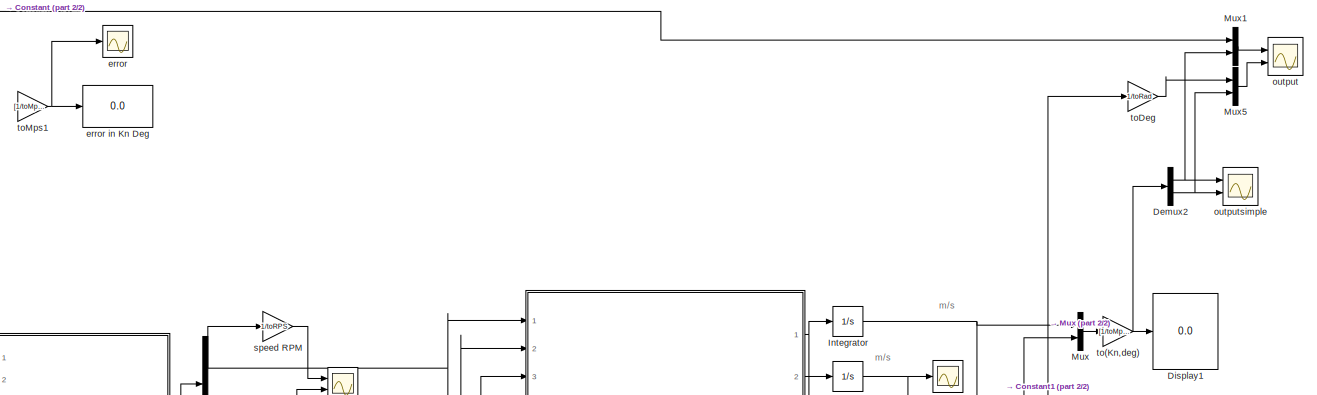
[diagram: root canvas - part 1/2, full width, top band]
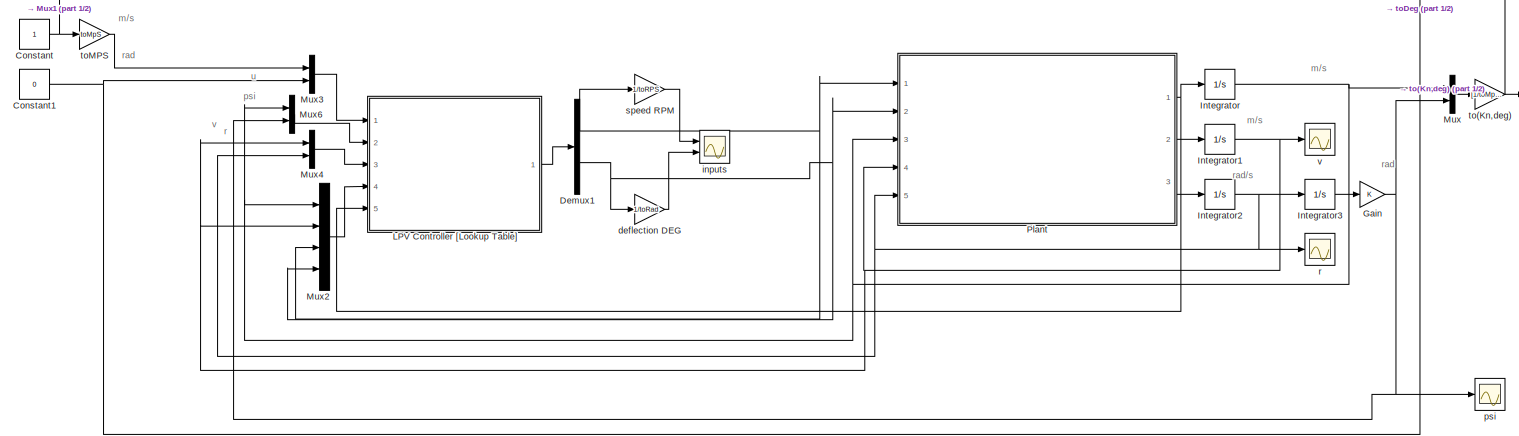
[diagram: root canvas - part 2/2, full width, bottom band]
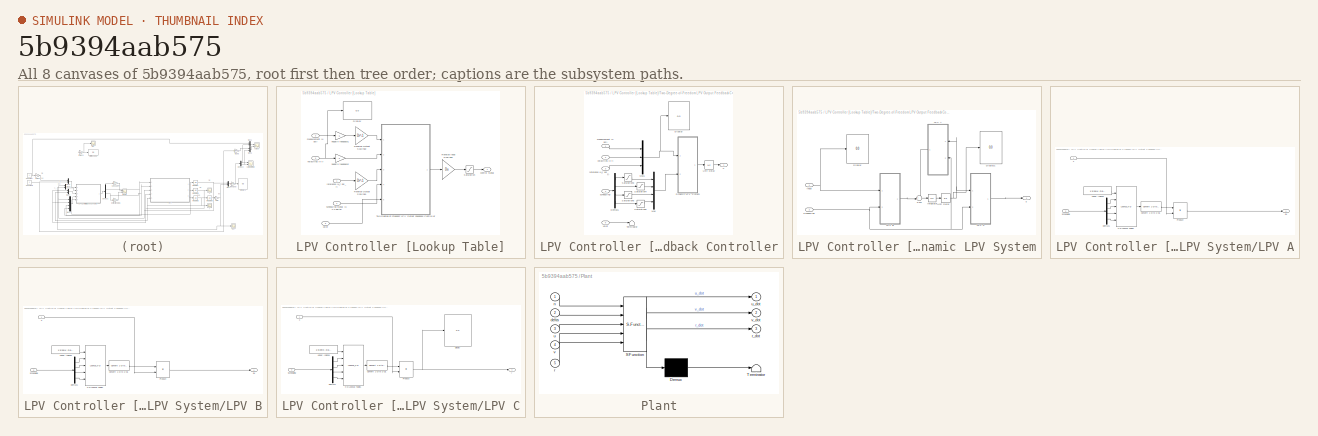
[diagram: thumbnail index - all 8 canvases of the model, root first then tree order]
MODEL slx_5b9394aab575
KIND model
CONFIG AbsTol = auto
CONFIG EnableMultiTasking = on
CONFIG FixedStep = 1e-3
CONFIG MaxStep = auto
CONFIG MinStep = auto
CONFIG RelTol = 1e-3
CONFIG SampleTimeConstraint = Unconstrained
CONFIG Solver = VariableStepAuto
CONFIG SolverName = VariableStepAuto
CONFIG StartTime = 0.0
CONFIG StopTime = 2000
BLOCK [Constant] Constant
BLOCK [Constant] Constant1
  Value = 0
BLOCK [Demux] Demux1
  DisplayOption = bar
  Outputs = 2
  Ports = [1, 2]
BLOCK [Demux] Demux2
  DisplayOption = bar
  Outputs = 2
  Ports = [1, 2]
BLOCK [Display] Display1
  Decimation = 1
  Ports = [1]
BLOCK [Gain] Gain
  OutDataTypeStr = Inherit: Inherit via internal rule
  ParamDataTypeStr = Inherit: Inherit via internal rule
  SaturateOnIntegerOverflow = off
BLOCK [Integrator] Integrator
  InitialCondition = .51*toMpS
  LowerSaturationLimit = 1e-1*toMpS
  Ports = [1, 1]
  UpperSaturationLimit = 16*toMpS
BLOCK [Integrator] Integrator1
  LimitOutput = on
  LowerSaturationLimit = -1*toMpS
  Ports = [1, 1]
  UpperSaturationLimit = 1*toMpS
BLOCK [Integrator] Integrator2
  LimitOutput = on
  LowerSaturationLimit = -1
  Ports = [1, 1]
  UpperSaturationLimit = 1
BLOCK [Integrator] Integrator3
  IgnoreLimit = on
  InitialCondition = 0*toRad
  LowerSaturationLimit = -180*toRad
  Ports = [1, 1]
  UpperSaturationLimit = 180*toRad
  WrapState = on
  WrappedStateLowerValue = -180*toRad
  WrappedStateUpperValue = 180*toRad
BLOCK [SubSystem] LPV Controller [Lookup Table]
  Ports = [5, 1]
  RequestExecContextInheritance = off
  Variant = off
BLOCK [Display] LPV Controller [Lookup Table]/Display
  Decimation = 1
  Ports = [1]
BLOCK [Gain] LPV Controller [Lookup Table]/Reverse Input Scaling1
  Gain = Du
  Multiplication = Matrix(K*u)
  OutDataTypeStr = Inherit: Inherit via internal rule
  ParamDataTypeStr = Inherit: Inherit via internal rule
  SaturateOnIntegerOverflow = off
BLOCK [Gain] LPV Controller [Lookup Table]/Reverse Output Scaling1
  Gain = Dr^-1
  Multiplication = Matrix(K*u)
  OutDataTypeStr = Inherit: Inherit via internal rule
  ParamDataTypeStr = Inherit: Inherit via internal rule
  SaturateOnIntegerOverflow = off
BLOCK [Gain] LPV Controller [Lookup Table]/Reverse Output Scaling2
  Gain = Dr^-1
  Multiplication = Matrix(K*u)
  OutDataTypeStr = Inherit: Inherit via internal rule
  ParamDataTypeStr = Inherit: Inherit via internal rule
  SaturateOnIntegerOverflow = off
BLOCK [Saturate] LPV Controller [Lookup Table]/Saturation
  InputPortMap = u0
  LowerLimit = [-20.*toRPS -3.*toRad]
  Ports = [1, 1]
  UpperLimit = [20.*toRPS 3.*toRad]
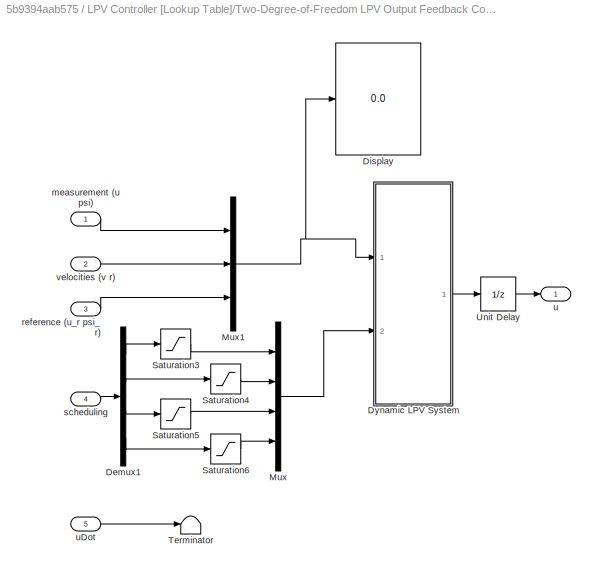
BLOCK [SubSystem] LPV Controller [Lookup Table]/Two-Degree-of-Freedom LPV Output Feedback Controller
  Ports = [5, 1]
  RequestExecContextInheritance = off
  Variant = off
BLOCK [Demux] LPV Controller [Lookup Table]/Two-Degree-of-Freedom LPV Output Feedback Controller/Demux1
  DisplayOption = bar
  Ports = [1, 4]
BLOCK [Display] LPV Controller [Lookup Table]/Two-Degree-of-Freedom LPV Output Feedback Controller/Display
  Decimation = 1
  Ports = [1]
BLOCK [SubSystem] LPV Controller [Lookup Table]/Two-Degree-of-Freedom LPV Output Feedback Controller/Dynamic LPV System
  Ports = [2, 1]
  RequestExecContextInheritance = off
  Variant = off
BLOCK [Display] LPV Controller [Lookup Table]/Two-Degree-of-Freedom LPV Output Feedback Controller/Dynamic LPV System/Display
  Decimation = 1
  Ports = [1]
BLOCK [Display] LPV Controller [Lookup Table]/Two-Degree-of-Freedom LPV Output Feedback Controller/Dynamic LPV System/Display1
  Decimation = 1
  Ports = [1]
BLOCK [Integrator] LPV Controller [Lookup Table]/Two-Degree-of-Freedom LPV Output Feedback Controller/Dynamic LPV System/Integrator
  InitialCondition = zeros(size(K.a,1),1)
  Ports = [1, 1]
BLOCK [SubSystem] LPV Controller [Lookup Table]/Two-Degree-of-Freedom LPV Output Feedback Controller/Dynamic LPV System/LPV A
  Ports = [2, 1]
  RequestExecContextInheritance = off
  Variant = off
BLOCK [Reference] LPV Controller [Lookup Table]/Two-Degree-of-Freedom LPV Output Feedback Controller/Dynamic LPV System/LPV A/Convert 1-D to 2-D1  REF=dspsigattribs/Convert 1-D to 2-D
  Ports = [1, 1]
  SourceBlock = dspsigattribs/Convert 1-D to 2-D
  SourceProductBaseCode = DS
  SourceProductName = DSP System Toolbox
  SourceType = Convert 1-D to 2-D
BLOCK [Demux] LPV Controller [Lookup Table]/Two-Degree-of-Freedom LPV Output Feedback Controller/Dynamic LPV System/LPV A/Demux1
  DisplayOption = bar
  Ports = [1, 4]
BLOCK [Constant] LPV Controller [Lookup Table]/Two-Degree-of-Freedom LPV Output Feedback Controller/Dynamic LPV System/LPV A/Linear Indices
  Value = 1:size(K.Data.a,1)*size(K.Data.a,2)
BLOCK [Product] LPV Controller [Lookup Table]/Two-Degree-of-Freedom LPV Output Feedback Controller/Dynamic LPV System/LPV A/Product
  InputSameDT = off
  Multiplication = Matrix(*)
  OutDataTypeStr = Inherit: Inherit via internal rule
  Ports = [2, 1]
  RndMeth = Floor
  SaturateOnIntegerOverflow = off
BLOCK [Inport] LPV Controller [Lookup Table]/Two-Degree-of-Freedom LPV Output Feedback Controller/Dynamic LPV System/LPV A/Scheduling
  IconDisplay = Port number
  Port = 2
BLOCK [Outport] LPV Controller [Lookup Table]/Two-Degree-of-Freedom LPV Output Feedback Controller/Dynamic LPV System/LPV A/dx
  IconDisplay = Port number
BLOCK [Lookup_n-D] LPV Controller [Lookup Table]/Two-Degree-of-Freedom LPV Output Feedback Controller/Dynamic LPV System/LPV A/n-D Lookup Table1
  BreakpointsForDimension1 = 1:size(K.Data.a,1)*size(K.Data.a,2)
  BreakpointsForDimension2 = K.Parameter.u.GridData
  BreakpointsForDimension3 = K.Parameter.v.GridData
  BreakpointsForDimension4 = K.Parameter.n.GridData
  BreakpointsForDimension5 = K.Parameter.delta.GridData
  BreakpointsForDimension6 = K.Parameter.uDot.GridData
  ExtrapMethod = Clip
  InternalRulePriority = Speed
  NumberOfTableDimensions = 5
  Ports = [5, 1]
  RndMeth = Simplest
  Table = reshape(K.Data.a,[size(K.Data.a,1)*size(K.Data.a,2), K.Domain.LIVData'])
  UseLastTableValue = on
BLOCK [Inport] LPV Controller [Lookup Table]/Two-Degree-of-Freedom LPV Output Feedback Controller/Dynamic LPV System/LPV A/x
  IconDisplay = Port number
BLOCK [SubSystem] LPV Controller [Lookup Table]/Two-Degree-of-Freedom LPV Output Feedback Controller/Dynamic LPV System/LPV B
  Ports = [2, 1]
  RequestExecContextInheritance = off
  Variant = off
BLOCK [Reference] LPV Controller [Lookup Table]/Two-Degree-of-Freedom LPV Output Feedback Controller/Dynamic LPV System/LPV B/Convert 1-D to 2-D1  REF=dspsigattribs/Convert 1-D to 2-D
  Ports = [1, 1]
  SourceBlock = dspsigattribs/Convert 1-D to 2-D
  SourceProductBaseCode = DS
  SourceProductName = DSP System Toolbox
  SourceType = Convert 1-D to 2-D
BLOCK [Demux] LPV Controller [Lookup Table]/Two-Degree-of-Freedom LPV Output Feedback Controller/Dynamic LPV System/LPV B/Demux1
  DisplayOption = bar
  Ports = [1, 4]
BLOCK [Constant] LPV Controller [Lookup Table]/Two-Degree-of-Freedom LPV Output Feedback Controller/Dynamic LPV System/LPV B/Linear Indices
  Value = 1:size(K.Data.b,1)*size(K.Data.b,2)
BLOCK [Product] LPV Controller [Lookup Table]/Two-Degree-of-Freedom LPV Output Feedback Controller/Dynamic LPV System/LPV B/Product
  InputSameDT = off
  Multiplication = Matrix(*)
  OutDataTypeStr = Inherit: Inherit via internal rule
  Ports = [2, 1]
  RndMeth = Floor
  SaturateOnIntegerOverflow = off
BLOCK [Inport] LPV Controller [Lookup Table]/Two-Degree-of-Freedom LPV Output Feedback Controller/Dynamic LPV System/LPV B/Scheduling
  IconDisplay = Port number
  Port = 2
BLOCK [Outport] LPV Controller [Lookup Table]/Two-Degree-of-Freedom LPV Output Feedback Controller/Dynamic LPV System/LPV B/dx
  IconDisplay = Port number
BLOCK [Lookup_n-D] LPV Controller [Lookup Table]/Two-Degree-of-Freedom LPV Output Feedback Controller/Dynamic LPV System/LPV B/n-D Lookup Table1
  BreakpointsForDimension1 = 1:size(K.Data.b,1)*size(K.Data.b,2)
  BreakpointsForDimension2 = K.Parameter.u.GridData
  BreakpointsForDimension3 = K.Parameter.v.GridData
  BreakpointsForDimension4 = K.Parameter.n.GridData
  BreakpointsForDimension5 = K.Parameter.delta.GridData
  BreakpointsForDimension6 = K.Parameter.uDot.GridData
  ExtrapMethod = Clip
  InternalRulePriority = Speed
  NumberOfTableDimensions = 5
  Ports = [5, 1]
  RndMeth = Simplest
  Table = reshape(K.Data.b,[size(K.Data.b,1)*size(K.Data.b,2), K.Domain.LIVData'])
  UseLastTableValue = on
BLOCK [Inport] LPV Controller [Lookup Table]/Two-Degree-of-Freedom LPV Output Feedback Controller/Dynamic LPV System/LPV B/u
  IconDisplay = Port number
BLOCK [SubSystem] LPV Controller [Lookup Table]/Two-Degree-of-Freedom LPV Output Feedback Controller/Dynamic LPV System/LPV C
  Ports = [2, 1]
  RequestExecContextInheritance = off
  Variant = off
BLOCK [Reference] LPV Controller [Lookup Table]/Two-Degree-of-Freedom LPV Output Feedback Controller/Dynamic LPV System/LPV C/Convert 1-D to 2-D1  REF=dspsigattribs/Convert 1-D to 2-D
  Ports = [1, 1]
  SourceBlock = dspsigattribs/Convert 1-D to 2-D
  SourceProductBaseCode = DS
  SourceProductName = DSP System Toolbox
  SourceType = Convert 1-D to 2-D
BLOCK [Demux] LPV Controller [Lookup Table]/Two-Degree-of-Freedom LPV Output Feedback Controller/Dynamic LPV System/LPV C/Demux1
  DisplayOption = bar
  Ports = [1, 4]
BLOCK [Display] LPV Controller [Lookup Table]/Two-Degree-of-Freedom LPV Output Feedback Controller/Dynamic LPV System/LPV C/Display
  Decimation = 1
  Ports = [1]
BLOCK [Constant] LPV Controller [Lookup Table]/Two-Degree-of-Freedom LPV Output Feedback Controller/Dynamic LPV System/LPV C/Linear Indices
  Value = 1:size(K.Data.c,1)*size(K.Data.c,2)
BLOCK [Product] LPV Controller [Lookup Table]/Two-Degree-of-Freedom LPV Output Feedback Controller/Dynamic LPV System/LPV C/Product
  InputSameDT = off
  Multiplication = Matrix(*)
  OutDataTypeStr = Inherit: Inherit via internal rule
  Ports = [2, 1]
  RndMeth = Floor
  SaturateOnIntegerOverflow = off
BLOCK [Inport] LPV Controller [Lookup Table]/Two-Degree-of-Freedom LPV Output Feedback Controller/Dynamic LPV System/LPV C/Scheduling
  IconDisplay = Port number
  Port = 2
BLOCK [Lookup_n-D] LPV Controller [Lookup Table]/Two-Degree-of-Freedom LPV Output Feedback Controller/Dynamic LPV System/LPV C/n-D Lookup Table1
  BreakpointsForDimension1 = 1:size(K.Data.c,1)*size(K.Data.c,2)
  BreakpointsForDimension2 = K.Parameter.u.GridData
  BreakpointsForDimension3 = K.Parameter.v.GridData
  BreakpointsForDimension4 = K.Parameter.n.GridData
  BreakpointsForDimension5 = K.Parameter.delta.GridData
  BreakpointsForDimension6 = K.Parameter.uDot.GridData
  ExtrapMethod = Clip
  InternalRulePriority = Speed
  NumberOfTableDimensions = 5
  Ports = [5, 1]
  RndMeth = Simplest
  Table = reshape(K.Data.c,[size(K.Data.c,1)*size(K.Data.c,2), K.Domain.LIVData'])
  UseLastTableValue = on
BLOCK [Inport] LPV Controller [Lookup Table]/Two-Degree-of-Freedom LPV Output Feedback Controller/Dynamic LPV System/LPV C/x
  IconDisplay = Port number
BLOCK [Outport] LPV Controller [Lookup Table]/Two-Degree-of-Freedom LPV Output Feedback Controller/Dynamic LPV System/LPV C/y
  IconDisplay = Port number
BLOCK [Inport] LPV Controller [Lookup Table]/Two-Degree-of-Freedom LPV Output Feedback Controller/Dynamic LPV System/Scheduling
  IconDisplay = Port number
  Port = 2
BLOCK [Sum] LPV Controller [Lookup Table]/Two-Degree-of-Freedom LPV Output Feedback Controller/Dynamic LPV System/Sum
  IconShape = round
  InputSameDT = off
  Inputs = ++|
  OutDataTypeStr = Inherit: Inherit via internal rule
  Ports = [2, 1]
  SaturateOnIntegerOverflow = off
BLOCK [UnitDelay] LPV Controller [Lookup Table]/Two-Degree-of-Freedom LPV Output Feedback Controller/Dynamic LPV System/Unit Delay
  InputProcessing = Elements as channels (sample based)
  SampleTime = -1
BLOCK [Inport] LPV Controller [Lookup Table]/Two-Degree-of-Freedom LPV Output Feedback Controller/Dynamic LPV System/input
  IconDisplay = Port number
BLOCK [Outport] LPV Controller [Lookup Table]/Two-Degree-of-Freedom LPV Output Feedback Controller/Dynamic LPV System/u
  IconDisplay = Port number
BLOCK [Mux] LPV Controller [Lookup Table]/Two-Degree-of-Freedom LPV Output Feedback Controller/Mux
  DisplayOption = bar
  Ports = [4, 1]
BLOCK [Mux] LPV Controller [Lookup Table]/Two-Degree-of-Freedom LPV Output Feedback Controller/Mux1
  DisplayOption = bar
  Inputs = [2 2 2]
  Ports = [3, 1]
BLOCK [Saturate] LPV Controller [Lookup Table]/Two-Degree-of-Freedom LPV Output Feedback Controller/Saturation3
  InputPortMap = u0
  LowerLimit = K.Parameter.u.Range(1)
  Ports = [1, 1]
  UpperLimit = K.Parameter.u.Range(2)
BLOCK [Saturate] LPV Controller [Lookup Table]/Two-Degree-of-Freedom LPV Output Feedback Controller/Saturation4
  InputPortMap = u0
  LowerLimit = K.Parameter.v.Range(1)
  Ports = [1, 1]
  UpperLimit = K.Parameter.v.Range(2)
BLOCK [Saturate] LPV Controller [Lookup Table]/Two-Degree-of-Freedom LPV Output Feedback Controller/Saturation5
  InputPortMap = u0
  LowerLimit = K.Parameter.n.Range(1)
  Ports = [1, 1]
  UpperLimit = K.Parameter.n.Range(2)
BLOCK [Saturate] LPV Controller [Lookup Table]/Two-Degree-of-Freedom LPV Output Feedback Controller/Saturation6
  InputPortMap = u0
  LowerLimit = K.Parameter.delta.Range(1)
  Ports = [1, 1]
  UpperLimit = K.Parameter.delta.Range(2)
BLOCK [Terminator] LPV Controller [Lookup Table]/Two-Degree-of-Freedom LPV Output Feedback Controller/Terminator
BLOCK [UnitDelay] LPV Controller [Lookup Table]/Two-Degree-of-Freedom LPV Output Feedback Controller/Unit Delay
  InitialCondition = [1 0]
  InputProcessing = Elements as channels (sample based)
  SampleTime = -1
BLOCK [Inport] LPV Controller [Lookup Table]/Two-Degree-of-Freedom LPV Output Feedback Controller/measurement (u psi)
  IconDisplay = Port number
BLOCK [Inport] LPV Controller [Lookup Table]/Two-Degree-of-Freedom LPV Output Feedback Controller/reference (u_r psi_r)
  IconDisplay = Port number
  Port = 3
BLOCK [Inport] LPV Controller [Lookup Table]/Two-Degree-of-Freedom LPV Output Feedback Controller/scheduling
  IconDisplay = Port number
  Port = 4
BLOCK [Outport] LPV Controller [Lookup Table]/Two-Degree-of-Freedom LPV Output Feedback Controller/u
  IconDisplay = Port number
BLOCK [Inport] LPV Controller [Lookup Table]/Two-Degree-of-Freedom LPV Output Feedback Controller/uDot
  IconDisplay = Port number
  Port = 5
BLOCK [Inport] LPV Controller [Lookup Table]/Two-Degree-of-Freedom LPV Output Feedback Controller/velocities (v r)
  IconDisplay = Port number
  Port = 2
BLOCK [Outport] LPV Controller [Lookup Table]/control signal
  IconDisplay = Port number
BLOCK [Inport] LPV Controller [Lookup Table]/measurement (u psi)
  IconDisplay = Port number
  Port = 2
BLOCK [Gain] LPV Controller [Lookup Table]/negativ feedback1
  Gain = -1
  OutDataTypeStr = Inherit: Inherit via internal rule
  ParamDataTypeStr = Inherit: Inherit via internal rule
  SaturateOnIntegerOverflow = off
BLOCK [Gain] LPV Controller [Lookup Table]/negativ feedback2
  Gain = -1
  OutDataTypeStr = Inherit: Inherit via internal rule
  ParamDataTypeStr = Inherit: Inherit via internal rule
  SaturateOnIntegerOverflow = off
BLOCK [Inport] LPV Controller [Lookup Table]/reference (u_r psi_r)
  IconDisplay = Port number
BLOCK [Inport] LPV Controller [Lookup Table]/scheduling signal (u v n delta)
  IconDisplay = Port number
  Port = 4
BLOCK [Inport] LPV Controller [Lookup Table]/uDot
  IconDisplay = Port number
  Port = 5
BLOCK [Inport] LPV Controller [Lookup Table]/velocities (v r)
  IconDisplay = Port number
  Port = 3
BLOCK [Mux] Mux
  DisplayOption = bar
  Inputs = 2
  Ports = [2, 1]
BLOCK [Mux] Mux1
  DisplayOption = bar
  Inputs = 2
  Ports = [2, 1]
BLOCK [Mux] Mux2
  DisplayOption = bar
  Ports = [4, 1]
BLOCK [Mux] Mux3
  DisplayOption = bar
  Inputs = 2
  Ports = [2, 1]
BLOCK [Mux] Mux4
  DisplayOption = bar
  Inputs = 2
  Ports = [2, 1]
BLOCK [Mux] Mux5
  DisplayOption = bar
  Inputs = 2
  Ports = [2, 1]
BLOCK [Mux] Mux6
  DisplayOption = bar
  Inputs = 2
  Ports = [2, 1]
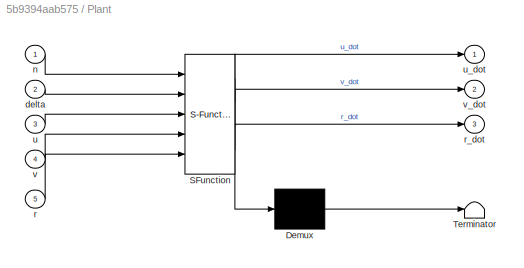
BLOCK [SubSystem] Plant
  ErrorFcn = Stateflow.Translate.translate
  PermitHierarchicalResolution = ExplicitOnly
  Ports = [5, 3]
  RequestExecContextInheritance = off
  SFBlockType = MATLAB Function
  TreatAsAtomicUnit = on
  Variant = off
BLOCK [Demux] Plant/ Demux 
  Outputs = 1
  Ports = [1, 1]
BLOCK [S-Function] Plant/ SFunction 
  EnableBusSupport = on
  FunctionName = sf_sfun
  PortCounts = [5 4]
  Ports = [5, 4]
  SFcnIsStateOwnerBlock = off
  SFunctionDeploymentMode = off
  Tag = Stateflow S-Function SimQLPVOFb 2
BLOCK [Terminator] Plant/ Terminator 
BLOCK [Inport] Plant/delta
  IconDisplay = Port number
  Port = 2
BLOCK [Inport] Plant/n
  IconDisplay = Port number
BLOCK [Inport] Plant/r
  IconDisplay = Port number
  Port = 5
BLOCK [Outport] Plant/r_dot
  IconDisplay = Port number
  Port = 3
BLOCK [Inport] Plant/u
  IconDisplay = Port number
  Port = 3
BLOCK [Outport] Plant/u_dot
  IconDisplay = Port number
BLOCK [Inport] Plant/v
  IconDisplay = Port number
  Port = 4
BLOCK [Outport] Plant/v_dot
  IconDisplay = Port number
  Port = 2
BLOCK [Gain] deflection DEG
  Gain = 1/toRad
  OutDataTypeStr = Inherit: Inherit via internal rule
  ParamDataTypeStr = Inherit: Inherit via internal rule
  SaturateOnIntegerOverflow = off
BLOCK [Scope] error
  NumInputPorts = 1
  Ports = [1]
  ScopeSpecificationString = Simulink.scopes.TimeScopeBlockCfg('CurrentConfiguration', extmgr.ConfigurationSet(extmgr.Configuration('Core','General UI',true),extmgr.Configuration('Core','Source UI',true),extmgr.Configuration('Sources','WiredSimulink',true,'DataLoggingVariableName','ScopeData2'),extmgr.Configuration('Visuals','Time Domain',true,'SerializedDisplays',{struct('MinYLimReal','-135.00000','MaxYLimReal','315.00000','...<+1517ch>
BLOCK [Display] error in Kn Deg
  Decimation = 1
  Ports = [1]
BLOCK [Scope] inputs
  NumInputPorts = 2
  Ports = [2]
  ScopeSpecificationString = Simulink.scopes.TimeScopeBlockCfg('CurrentConfiguration', extmgr.ConfigurationSet(extmgr.Configuration('Core','General UI',true),extmgr.Configuration('Core','Source UI',true),extmgr.Configuration('Sources','WiredSimulink',true,'DataLoggingVariableName','ScopeData1'),extmgr.Configuration('Visuals','Time Domain',true,'SerializedDisplays',{struct('MinYLimReal','-100.00000','MaxYLimReal','100.00000','...<+2065ch>
BLOCK [Scope] output
  NumInputPorts = 2
  Ports = [2]
  ScopeSpecificationString = Simulink.scopes.TimeScopeBlockCfg('CurrentConfiguration', extmgr.ConfigurationSet(extmgr.Configuration('Core','General UI',true,'FigureColor',[1 1 1]),extmgr.Configuration('Core','Source UI',true),extmgr.Configuration('Sources','WiredSimulink',true,'DataLoggingVariableName','ScopeData1'),extmgr.Configuration('Visuals','Time Domain',true,'PlotType','Line','SerializedDisplays',{struct('MinYLimReal',...<+3953ch>
BLOCK [Scope] outputsimple
  NumInputPorts = 2
  Ports = [2]
  ScopeSpecificationString = Simulink.scopes.TimeScopeBlockCfg('CurrentConfiguration', extmgr.ConfigurationSet(extmgr.Configuration('Core','General UI',true,'FigureColor',[1 1 1]),extmgr.Configuration('Core','Source UI',true),extmgr.Configuration('Sources','WiredSimulink',true,'DataLoggingVariableName','ScopeData1'),extmgr.Configuration('Visuals','Time Domain',true,'PlotType','Line','SerializedDisplays',{struct('MinYLimReal',...<+4044ch>
BLOCK [Scope] psi
  NumInputPorts = 1
  Ports = [1]
  ScopeSpecificationString = Simulink.scopes.TimeScopeBlockCfg('CurrentConfiguration', extmgr.ConfigurationSet(extmgr.Configuration('Core','General UI',true),extmgr.Configuration('Core','Source UI',true),extmgr.Configuration('Sources','WiredSimulink',true,'DataLoggingVariableName','ScopeData2'),extmgr.Configuration('Visuals','Time Domain',true,'SerializedDisplays',{struct('MinYLimReal','-3.91447','MaxYLimReal','3.92489','YLab...<+1432ch>
BLOCK [Scope] r
  NumInputPorts = 1
  Ports = [1]
  ScopeSpecificationString = Simulink.scopes.TimeScopeBlockCfg('CurrentConfiguration', extmgr.ConfigurationSet(extmgr.Configuration('Core','General UI',true),extmgr.Configuration('Core','Source UI',true),extmgr.Configuration('Sources','WiredSimulink',true,'DataLoggingVariableName','ScopeData2'),extmgr.Configuration('Visuals','Time Domain',true,'SerializedDisplays',{struct('MinYLimReal','-0.00061','MaxYLimReal','0.00014','YLab...<+1424ch>
BLOCK [Gain] speed RPM
  Gain = 1/toRPS
  OutDataTypeStr = Inherit: Inherit via internal rule
  ParamDataTypeStr = Inherit: Inherit via internal rule
  SaturateOnIntegerOverflow = off
BLOCK [Gain] to(Kn,deg)
  Gain = [1/toMpS 1/toRad]
  OutDataTypeStr = Inherit: Inherit via internal rule
  ParamDataTypeStr = Inherit: Inherit via internal rule
  SaturateOnIntegerOverflow = off
BLOCK [Gain] toDeg
  Gain = 1/toRad
  OutDataTypeStr = Inherit: Inherit via internal rule
  ParamDataTypeStr = Inherit: Inherit via internal rule
  SaturateOnIntegerOverflow = off
BLOCK [Gain] toMPS
  Gain = toMpS
  OutDataTypeStr = Inherit: Inherit via internal rule
  ParamDataTypeStr = Inherit: Inherit via internal rule
  SaturateOnIntegerOverflow = off
BLOCK [Gain] toMps1
  Gain = [1/toMpS 180/pi]
  OutDataTypeStr = Inherit: Inherit via internal rule
  ParamDataTypeStr = Inherit: Inherit via internal rule
  SaturateOnIntegerOverflow = off
BLOCK [Scope] v
  NumInputPorts = 1
  Ports = [1]
  ScopeSpecificationString = Simulink.scopes.TimeScopeBlockCfg('CurrentConfiguration', extmgr.ConfigurationSet(extmgr.Configuration('Core','General UI',true),extmgr.Configuration('Core','Source UI',true),extmgr.Configuration('Sources','WiredSimulink',true,'DataLoggingVariableName','ScopeData1'),extmgr.Configuration('Visuals','Time Domain',true,'SerializedDisplays',{struct('MinYLimReal','-0.00839','MaxYLimReal','0.0537','YLabe...<+1446ch>
ANNOTATION (root): m/s
ANNOTATION (root): psi
ANNOTATION (root): r
ANNOTATION (root): rad
ANNOTATION (root): rad/s
ANNOTATION (root): u
ANNOTATION (root): v
NET Constant1:1 -> Mux3:2, toDeg:1
NET Constant:1 -> Mux1:1, toMPS:1
NET Demux1:1 -> Mux2:3, Plant:1, speed RPM:1
NET Demux1:2 -> Mux2:4, Plant:2, deflection DEG:1
NET Demux2:1 -> Mux1:2, outputsimple:1
NET Demux2:2 -> Mux5:2, outputsimple:2
NET Gain:1 -> Mux6:2, Mux:2, psi:1
NET Integrator1:1 -> Mux2:2, Mux4:1, Plant:4, v:1
NET Integrator2:1 -> Integrator3:1, Mux4:2, Plant:5, r:1
LINE Integrator3:1 -> Gain:1
NET Integrator:1 -> Mux2:1, Mux6:1, Mux:1, Plant:3
LINE LPV Controller [Lookup Table]/Reverse Input Scaling1:1 -> LPV Controller [Lookup Table]/Saturation:1
LINE LPV Controller [Lookup Table]/Reverse Output Scaling1:1 -> LPV Controller [Lookup Table]/Two-Degree-of-Freedom LPV Output Feedback Controller:3
LINE LPV Controller [Lookup Table]/Reverse Output Scaling2:1 -> LPV Controller [Lookup Table]/Two-Degree-of-Freedom LPV Output Feedback Controller:1
LINE LPV Controller [Lookup Table]/Saturation:1 -> LPV Controller [Lookup Table]/control signal:1
LINE LPV Controller [Lookup Table]/Two-Degree-of-Freedom LPV Output Feedback Controller/Demux1:1 -> LPV Controller [Lookup Table]/Two-Degree-of-Freedom LPV Output Feedback Controller/Saturation3:1
LINE LPV Controller [Lookup Table]/Two-Degree-of-Freedom LPV Output Feedback Controller/Demux1:2 -> LPV Controller [Lookup Table]/Two-Degree-of-Freedom LPV Output Feedback Controller/Saturation4:1
LINE LPV Controller [Lookup Table]/Two-Degree-of-Freedom LPV Output Feedback Controller/Demux1:3 -> LPV Controller [Lookup Table]/Two-Degree-of-Freedom LPV Output Feedback Controller/Saturation5:1
LINE LPV Controller [Lookup Table]/Two-Degree-of-Freedom LPV Output Feedback Controller/Demux1:4 -> LPV Controller [Lookup Table]/Two-Degree-of-Freedom LPV Output Feedback Controller/Saturation6:1
LINE LPV Controller [Lookup Table]/Two-Degree-of-Freedom LPV Output Feedback Controller/Dynamic LPV System/Integrator:1 -> LPV Controller [Lookup Table]/Two-Degree-of-Freedom LPV Output Feedback Controller/Dynamic LPV System/Unit Delay:1
LINE LPV Controller [Lookup Table]/Two-Degree-of-Freedom LPV Output Feedback Controller/Dynamic LPV System/LPV A/Convert 1-D to 2-D1:1 -> LPV Controller [Lookup Table]/Two-Degree-of-Freedom LPV Output Feedback Controller/Dynamic LPV System/LPV A/Product:1
LINE LPV Controller [Lookup Table]/Two-Degree-of-Freedom LPV Output Feedback Controller/Dynamic LPV System/LPV A/Demux1:1 -> LPV Controller [Lookup Table]/Two-Degree-of-Freedom LPV Output Feedback Controller/Dynamic LPV System/LPV A/n-D Lookup Table1:2
LINE LPV Controller [Lookup Table]/Two-Degree-of-Freedom LPV Output Feedback Controller/Dynamic LPV System/LPV A/Demux1:2 -> LPV Controller [Lookup Table]/Two-Degree-of-Freedom LPV Output Feedback Controller/Dynamic LPV System/LPV A/n-D Lookup Table1:3
LINE LPV Controller [Lookup Table]/Two-Degree-of-Freedom LPV Output Feedback Controller/Dynamic LPV System/LPV A/Demux1:3 -> LPV Controller [Lookup Table]/Two-Degree-of-Freedom LPV Output Feedback Controller/Dynamic LPV System/LPV A/n-D Lookup Table1:4
LINE LPV Controller [Lookup Table]/Two-Degree-of-Freedom LPV Output Feedback Controller/Dynamic LPV System/LPV A/Demux1:4 -> LPV Controller [Lookup Table]/Two-Degree-of-Freedom LPV Output Feedback Controller/Dynamic LPV System/LPV A/n-D Lookup Table1:5
LINE LPV Controller [Lookup Table]/Two-Degree-of-Freedom LPV Output Feedback Controller/Dynamic LPV System/LPV A/Linear Indices:1 -> LPV Controller [Lookup Table]/Two-Degree-of-Freedom LPV Output Feedback Controller/Dynamic LPV System/LPV A/n-D Lookup Table1:1
LINE LPV Controller [Lookup Table]/Two-Degree-of-Freedom LPV Output Feedback Controller/Dynamic LPV System/LPV A/Product:1 -> LPV Controller [Lookup Table]/Two-Degree-of-Freedom LPV Output Feedback Controller/Dynamic LPV System/LPV A/dx:1
LINE LPV Controller [Lookup Table]/Two-Degree-of-Freedom LPV Output Feedback Controller/Dynamic LPV System/LPV A/Scheduling:1 -> LPV Controller [Lookup Table]/Two-Degree-of-Freedom LPV Output Feedback Controller/Dynamic LPV System/LPV A/Demux1:1
LINE LPV Controller [Lookup Table]/Two-Degree-of-Freedom LPV Output Feedback Controller/Dynamic LPV System/LPV A/n-D Lookup Table1:1 -> LPV Controller [Lookup Table]/Two-Degree-of-Freedom LPV Output Feedback Controller/Dynamic LPV System/LPV A/Convert 1-D to 2-D1:1
LINE LPV Controller [Lookup Table]/Two-Degree-of-Freedom LPV Output Feedback Controller/Dynamic LPV System/LPV A/x:1 -> LPV Controller [Lookup Table]/Two-Degree-of-Freedom LPV Output Feedback Controller/Dynamic LPV System/LPV A/Product:2
LINE LPV Controller [Lookup Table]/Two-Degree-of-Freedom LPV Output Feedback Controller/Dynamic LPV System/LPV A:1 -> LPV Controller [Lookup Table]/Two-Degree-of-Freedom LPV Output Feedback Controller/Dynamic LPV System/Sum:1
LINE LPV Controller [Lookup Table]/Two-Degree-of-Freedom LPV Output Feedback Controller/Dynamic LPV System/LPV B/Convert 1-D to 2-D1:1 -> LPV Controller [Lookup Table]/Two-Degree-of-Freedom LPV Output Feedback Controller/Dynamic LPV System/LPV B/Product:1
LINE LPV Controller [Lookup Table]/Two-Degree-of-Freedom LPV Output Feedback Controller/Dynamic LPV System/LPV B/Demux1:1 -> LPV Controller [Lookup Table]/Two-Degree-of-Freedom LPV Output Feedback Controller/Dynamic LPV System/LPV B/n-D Lookup Table1:2
LINE LPV Controller [Lookup Table]/Two-Degree-of-Freedom LPV Output Feedback Controller/Dynamic LPV System/LPV B/Demux1:2 -> LPV Controller [Lookup Table]/Two-Degree-of-Freedom LPV Output Feedback Controller/Dynamic LPV System/LPV B/n-D Lookup Table1:3
LINE LPV Controller [Lookup Table]/Two-Degree-of-Freedom LPV Output Feedback Controller/Dynamic LPV System/LPV B/Demux1:3 -> LPV Controller [Lookup Table]/Two-Degree-of-Freedom LPV Output Feedback Controller/Dynamic LPV System/LPV B/n-D Lookup Table1:4
LINE LPV Controller [Lookup Table]/Two-Degree-of-Freedom LPV Output Feedback Controller/Dynamic LPV System/LPV B/Demux1:4 -> LPV Controller [Lookup Table]/Two-Degree-of-Freedom LPV Output Feedback Controller/Dynamic LPV System/LPV B/n-D Lookup Table1:5
LINE LPV Controller [Lookup Table]/Two-Degree-of-Freedom LPV Output Feedback Controller/Dynamic LPV System/LPV B/Linear Indices:1 -> LPV Controller [Lookup Table]/Two-Degree-of-Freedom LPV Output Feedback Controller/Dynamic LPV System/LPV B/n-D Lookup Table1:1
LINE LPV Controller [Lookup Table]/Two-Degree-of-Freedom LPV Output Feedback Controller/Dynamic LPV System/LPV B/Product:1 -> LPV Controller [Lookup Table]/Two-Degree-of-Freedom LPV Output Feedback Controller/Dynamic LPV System/LPV B/dx:1
LINE LPV Controller [Lookup Table]/Two-Degree-of-Freedom LPV Output Feedback Controller/Dynamic LPV System/LPV B/Scheduling:1 -> LPV Controller [Lookup Table]/Two-Degree-of-Freedom LPV Output Feedback Controller/Dynamic LPV System/LPV B/Demux1:1
LINE LPV Controller [Lookup Table]/Two-Degree-of-Freedom LPV Output Feedback Controller/Dynamic LPV System/LPV B/n-D Lookup Table1:1 -> LPV Controller [Lookup Table]/Two-Degree-of-Freedom LPV Output Feedback Controller/Dynamic LPV System/LPV B/Convert 1-D to 2-D1:1
LINE LPV Controller [Lookup Table]/Two-Degree-of-Freedom LPV Output Feedback Controller/Dynamic LPV System/LPV B/u:1 -> LPV Controller [Lookup Table]/Two-Degree-of-Freedom LPV Output Feedback Controller/Dynamic LPV System/LPV B/Product:2
LINE LPV Controller [Lookup Table]/Two-Degree-of-Freedom LPV Output Feedback Controller/Dynamic LPV System/LPV B:1 -> LPV Controller [Lookup Table]/Two-Degree-of-Freedom LPV Output Feedback Controller/Dynamic LPV System/Sum:2
LINE LPV Controller [Lookup Table]/Two-Degree-of-Freedom LPV Output Feedback Controller/Dynamic LPV System/LPV C/Convert 1-D to 2-D1:1 -> LPV Controller [Lookup Table]/Two-Degree-of-Freedom LPV Output Feedback Controller/Dynamic LPV System/LPV C/Product:1
LINE LPV Controller [Lookup Table]/Two-Degree-of-Freedom LPV Output Feedback Controller/Dynamic LPV System/LPV C/Demux1:1 -> LPV Controller [Lookup Table]/Two-Degree-of-Freedom LPV Output Feedback Controller/Dynamic LPV System/LPV C/n-D Lookup Table1:2
LINE LPV Controller [Lookup Table]/Two-Degree-of-Freedom LPV Output Feedback Controller/Dynamic LPV System/LPV C/Demux1:2 -> LPV Controller [Lookup Table]/Two-Degree-of-Freedom LPV Output Feedback Controller/Dynamic LPV System/LPV C/n-D Lookup Table1:3
LINE LPV Controller [Lookup Table]/Two-Degree-of-Freedom LPV Output Feedback Controller/Dynamic LPV System/LPV C/Demux1:3 -> LPV Controller [Lookup Table]/Two-Degree-of-Freedom LPV Output Feedback Controller/Dynamic LPV System/LPV C/n-D Lookup Table1:4
LINE LPV Controller [Lookup Table]/Two-Degree-of-Freedom LPV Output Feedback Controller/Dynamic LPV System/LPV C/Demux1:4 -> LPV Controller [Lookup Table]/Two-Degree-of-Freedom LPV Output Feedback Controller/Dynamic LPV System/LPV C/n-D Lookup Table1:5
LINE LPV Controller [Lookup Table]/Two-Degree-of-Freedom LPV Output Feedback Controller/Dynamic LPV System/LPV C/Linear Indices:1 -> LPV Controller [Lookup Table]/Two-Degree-of-Freedom LPV Output Feedback Controller/Dynamic LPV System/LPV C/n-D Lookup Table1:1
NET LPV Controller [Lookup Table]/Two-Degree-of-Freedom LPV Output Feedback Controller/Dynamic LPV System/LPV C/Product:1 -> LPV Controller [Lookup Table]/Two-Degree-of-Freedom LPV Output Feedback Controller/Dynamic LPV System/LPV C/Display:1, LPV Controller [Lookup Table]/Two-Degree-of-Freedom LPV Output Feedback Controller/Dynamic LPV System/LPV C/y:1
LINE LPV Controller [Lookup Table]/Two-Degree-of-Freedom LPV Output Feedback Controller/Dynamic LPV System/LPV C/Scheduling:1 -> LPV Controller [Lookup Table]/Two-Degree-of-Freedom LPV Output Feedback Controller/Dynamic LPV System/LPV C/Demux1:1
LINE LPV Controller [Lookup Table]/Two-Degree-of-Freedom LPV Output Feedback Controller/Dynamic LPV System/LPV C/n-D Lookup Table1:1 -> LPV Controller [Lookup Table]/Two-Degree-of-Freedom LPV Output Feedback Controller/Dynamic LPV System/LPV C/Convert 1-D to 2-D1:1
LINE LPV Controller [Lookup Table]/Two-Degree-of-Freedom LPV Output Feedback Controller/Dynamic LPV System/LPV C/x:1 -> LPV Controller [Lookup Table]/Two-Degree-of-Freedom LPV Output Feedback Controller/Dynamic LPV System/LPV C/Product:2
LINE LPV Controller [Lookup Table]/Two-Degree-of-Freedom LPV Output Feedback Controller/Dynamic LPV System/LPV C:1 -> LPV Controller [Lookup Table]/Two-Degree-of-Freedom LPV Output Feedback Controller/Dynamic LPV System/u:1
NET LPV Controller [Lookup Table]/Two-Degree-of-Freedom LPV Output Feedback Controller/Dynamic LPV System/Scheduling:1 -> LPV Controller [Lookup Table]/Two-Degree-of-Freedom LPV Output Feedback Controller/Dynamic LPV System/LPV A:2, LPV Controller [Lookup Table]/Two-Degree-of-Freedom LPV Output Feedback Controller/Dynamic LPV System/LPV B:2, LPV Controller [Lookup Table]/Two-Degree-of-Freedom LPV Output Feedback Controller/Dynamic LPV System/LPV C:2
LINE LPV Controller [Lookup Table]/Two-Degree-of-Freedom LPV Output Feedback Controller/Dynamic LPV System/Sum:1 -> LPV Controller [Lookup Table]/Two-Degree-of-Freedom LPV Output Feedback Controller/Dynamic LPV System/Integrator:1
NET LPV Controller [Lookup Table]/Two-Degree-of-Freedom LPV Output Feedback Controller/Dynamic LPV System/Unit Delay:1 -> LPV Controller [Lookup Table]/Two-Degree-of-Freedom LPV Output Feedback Controller/Dynamic LPV System/Display1:1, LPV Controller [Lookup Table]/Two-Degree-of-Freedom LPV Output Feedback Controller/Dynamic LPV System/LPV A:1, LPV Controller [Lookup Table]/Two-Degree-of-Freedom LPV Output Feedback Controller/Dynamic LPV System/LPV C:1
NET LPV Controller [Lookup Table]/Two-Degree-of-Freedom LPV Output Feedback Controller/Dynamic LPV System/input:1 -> LPV Controller [Lookup Table]/Two-Degree-of-Freedom LPV Output Feedback Controller/Dynamic LPV System/Display:1, LPV Controller [Lookup Table]/Two-Degree-of-Freedom LPV Output Feedback Controller/Dynamic LPV System/LPV B:1
LINE LPV Controller [Lookup Table]/Two-Degree-of-Freedom LPV Output Feedback Controller/Dynamic LPV System:1 -> LPV Controller [Lookup Table]/Two-Degree-of-Freedom LPV Output Feedback Controller/Unit Delay:1
NET LPV Controller [Lookup Table]/Two-Degree-of-Freedom LPV Output Feedback Controller/Mux1:1 -> LPV Controller [Lookup Table]/Two-Degree-of-Freedom LPV Output Feedback Controller/Display:1, LPV Controller [Lookup Table]/Two-Degree-of-Freedom LPV Output Feedback Controller/Dynamic LPV System:1
LINE LPV Controller [Lookup Table]/Two-Degree-of-Freedom LPV Output Feedback Controller/Mux:1 -> LPV Controller [Lookup Table]/Two-Degree-of-Freedom LPV Output Feedback Controller/Dynamic LPV System:2
LINE LPV Controller [Lookup Table]/Two-Degree-of-Freedom LPV Output Feedback Controller/Saturation3:1 -> LPV Controller [Lookup Table]/Two-Degree-of-Freedom LPV Output Feedback Controller/Mux:1
LINE LPV Controller [Lookup Table]/Two-Degree-of-Freedom LPV Output Feedback Controller/Saturation4:1 -> LPV Controller [Lookup Table]/Two-Degree-of-Freedom LPV Output Feedback Controller/Mux:2
LINE LPV Controller [Lookup Table]/Two-Degree-of-Freedom LPV Output Feedback Controller/Saturation5:1 -> LPV Controller [Lookup Table]/Two-Degree-of-Freedom LPV Output Feedback Controller/Mux:3
LINE LPV Controller [Lookup Table]/Two-Degree-of-Freedom LPV Output Feedback Controller/Saturation6:1 -> LPV Controller [Lookup Table]/Two-Degree-of-Freedom LPV Output Feedback Controller/Mux:4
LINE LPV Controller [Lookup Table]/Two-Degree-of-Freedom LPV Output Feedback Controller/Unit Delay:1 -> LPV Controller [Lookup Table]/Two-Degree-of-Freedom LPV Output Feedback Controller/u:1
LINE LPV Controller [Lookup Table]/Two-Degree-of-Freedom LPV Output Feedback Controller/measurement (u psi):1 -> LPV Controller [Lookup Table]/Two-Degree-of-Freedom LPV Output Feedback Controller/Mux1:1
LINE LPV Controller [Lookup Table]/Two-Degree-of-Freedom LPV Output Feedback Controller/reference (u_r psi_r):1 -> LPV Controller [Lookup Table]/Two-Degree-of-Freedom LPV Output Feedback Controller/Mux1:3
LINE LPV Controller [Lookup Table]/Two-Degree-of-Freedom LPV Output Feedback Controller/scheduling:1 -> LPV Controller [Lookup Table]/Two-Degree-of-Freedom LPV Output Feedback Controller/Demux1:1
LINE LPV Controller [Lookup Table]/Two-Degree-of-Freedom LPV Output Feedback Controller/uDot:1 -> LPV Controller [Lookup Table]/Two-Degree-of-Freedom LPV Output Feedback Controller/Terminator:1
LINE LPV Controller [Lookup Table]/Two-Degree-of-Freedom LPV Output Feedback Controller/velocities (v r):1 -> LPV Controller [Lookup Table]/Two-Degree-of-Freedom LPV Output Feedback Controller/Mux1:2
LINE LPV Controller [Lookup Table]/Two-Degree-of-Freedom LPV Output Feedback Controller:1 -> LPV Controller [Lookup Table]/Reverse Input Scaling1:1
LINE LPV Controller [Lookup Table]/measurement (u psi):1 -> LPV Controller [Lookup Table]/negativ feedback1:1
LINE LPV Controller [Lookup Table]/negativ feedback1:1 -> LPV Controller [Lookup Table]/Reverse Output Scaling2:1
LINE LPV Controller [Lookup Table]/negativ feedback2:1 -> LPV Controller [Lookup Table]/Two-Degree-of-Freedom LPV Output Feedback Controller:2
LINE LPV Controller [Lookup Table]/reference (u_r psi_r):1 -> LPV Controller [Lookup Table]/Reverse Output Scaling1:1
LINE LPV Controller [Lookup Table]/scheduling signal (u v n delta):1 -> LPV Controller [Lookup Table]/Two-Degree-of-Freedom LPV Output Feedback Controller:4
LINE LPV Controller [Lookup Table]/uDot:1 -> LPV Controller [Lookup Table]/Two-Degree-of-Freedom LPV Output Feedback Controller:5
NET LPV Controller [Lookup Table]/velocities (v r):1 -> LPV Controller [Lookup Table]/Display:1, LPV Controller [Lookup Table]/negativ feedback2:1
LINE LPV Controller [Lookup Table]:1 -> Demux1:1
LINE Mux1:1 -> output:1
LINE Mux2:1 -> LPV Controller [Lookup Table]:4
LINE Mux3:1 -> LPV Controller [Lookup Table]:1
LINE Mux4:1 -> LPV Controller [Lookup Table]:3
LINE Mux5:1 -> output:2
LINE Mux6:1 -> LPV Controller [Lookup Table]:2
LINE Mux:1 -> to(Kn,deg):1
NET Plant:1 -> Integrator:1, LPV Controller [Lookup Table]:5
LINE Plant:2 -> Integrator1:1
LINE Plant:3 -> Integrator2:1
LINE deflection DEG:1 -> inputs:2
LINE speed RPM:1 -> inputs:1
NET to(Kn,deg):1 -> Demux2:1, Display1:1
LINE toDeg:1 -> Mux5:1
LINE toMPS:1 -> Mux3:1
NET toMps1:1 -> error in Kn Deg:1, error:1
note: NET lines group one-source signal fan-out (src -> all destinations, sorted); 1:1 wires keep LINE
CHART Plant states=1 transitions=1
  STATE_LABEL 'eML_blk_kernel()'
  STATE_LABEL 'SCRIPT:\nfunction [u_dot,v_dot,r_dot] = fcn(n,delta,u,v,r)\n% n = n/60;\n% v = 0;\n% r = 0;\nif (u==0)\n    u = 1e-1;\nend\n% Normalization variables\nL   =  304.8;          % length of ship (m)\ng   =  9.8;            % acceleration of gravity (m/s^2)\n\n% Parameters, hydrodynamic derivatives and main dimensions\n% delta_max  = 10;       % max rudder angle      (deg)\n% Ddelta_max = 2.33;     % max rudder deri...<+2649ch>'
